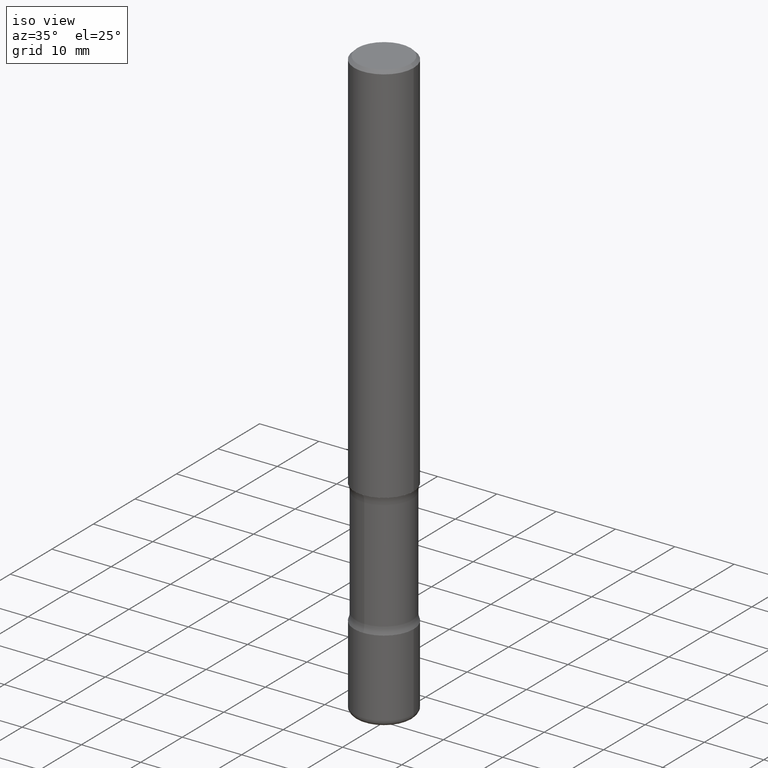
[diagram: clean part render]
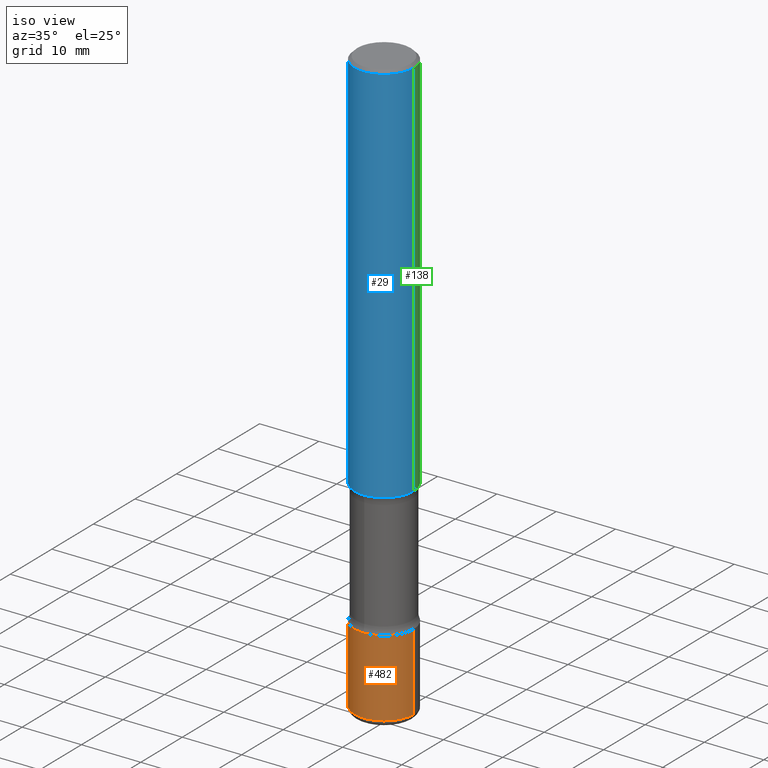
[diagram: same view with three faces highlighted in distinct colors, each labeled with its STEP entity id]
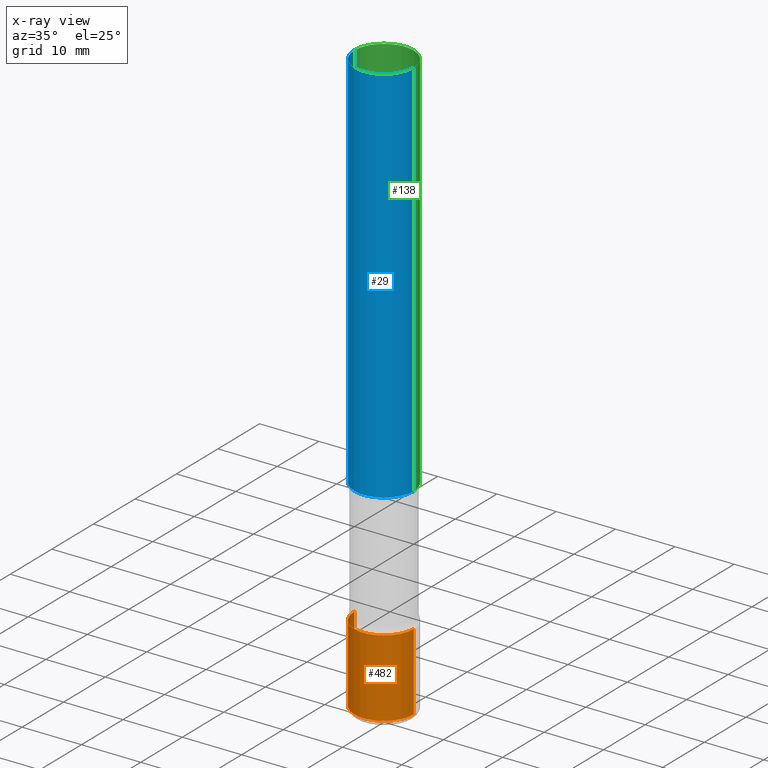
[diagram: x-ray of the same camera — body ghosted, the three highlighted faces saturated]
A machine part, iso view with three faces highlighted in distinct colors.
The next image is the same camera in x-ray (body ghosted, the three faces saturated) — at least one of them is partly hidden behind the body in this view.
Their STEP definitions:

[orange] entity #482 — the highlighted cylindrical surface (edge-blend (fillet) strip) has radius 5 mm, axis along (-0, 0, 1).
#14 = VECTOR ( 'NONE', #139, 39.37007874015748143 ) ;
#25 = CARTESIAN_POINT ( 'NONE',  ( 8.279868283981634472E-29, -1.182145751705512057E-14, -3.385799999999999699 ) ) ;
#32 = LINE ( 'NONE', #343, #14 ) ;
#74 = LINE ( 'NONE', #489, #273 ) ;
#77 = ORIENTED_EDGE ( 'NONE', *, *, #413, .T. ) ;
#78 = DIRECTION ( 'NONE',  ( -2.445468806185136597E-29, 3.491481338843145583E-15, 1.000000000000000000 ) ) ;
#89 = CARTESIAN_POINT ( 'NONE',  ( -0.1968500000000001082, -1.131622421632132460E-14, -3.385799999999999699 ) ) ;
#91 = EDGE_CURVE ( 'NONE', #385, #494, #32, .T. ) ;
#92 = FACE_OUTER_BOUND ( 'NONE', #257, .T. ) ;
#125 = CARTESIAN_POINT ( 'NONE',  ( 9.531459218987189074E-29, -1.360839766627504420E-14, -3.897600000000000176 ) ) ;
#127 = CIRCLE ( 'NONE', #441, 0.1968500000000001082 ) ;
#134 = EDGE_CURVE ( 'NONE', #494, #135, #127, .T. ) ;
#135 = VERTEX_POINT ( 'NONE', #169 ) ;
#139 = DIRECTION ( 'NONE',  ( -2.445468806185136877E-29, 3.491481338843145188E-15, 1.000000000000000000 ) ) ;
#169 = CARTESIAN_POINT ( 'NONE',  ( 0.1968500000000001082, -1.319605372015766376E-14, -3.385799999999999699 ) ) ;
#170 = DIRECTION ( 'NONE',  ( -2.445468806185136597E-29, 3.491481338843145583E-15, 1.000000000000000000 ) ) ;
#174 = CARTESIAN_POINT ( 'NONE',  ( 0.000000000000000000, 0.000000000000000000, 0.000000000000000000 ) ) ;
#247 = DIRECTION ( 'NONE',  ( 1.000000000000000000, -6.982962677686265133E-15, 0.000000000000000000 ) ) ;
#257 = EDGE_LOOP ( 'NONE', ( #374, #492, #77, #352 ) ) ;
#265 = AXIS2_PLACEMENT_3D ( 'NONE', #174, #78, #342 ) ;
#273 = VECTOR ( 'NONE', #414, 39.37007874015748143 ) ;
#293 = VERTEX_POINT ( 'NONE', #450 ) ;
#342 = DIRECTION ( 'NONE',  ( 1.000000000000000000, -6.982962677686266711E-15, 4.876176775795935793E-29 ) ) ;
#343 = CARTESIAN_POINT ( 'NONE',  ( -0.1968500000000001082, 1.398703375343757985E-15, -9.682923725166787881E-30 ) ) ;
#352 = ORIENTED_EDGE ( 'NONE', *, *, #134, .F. ) ;
#367 = CARTESIAN_POINT ( 'NONE',  ( -0.1968500000000000527, -1.220969429093128562E-14, -3.897600000000000176 ) ) ;
#373 = EDGE_CURVE ( 'NONE', #385, #293, #481, .T. ) ;
#374 = ORIENTED_EDGE ( 'NONE', *, *, #91, .F. ) ;
#385 = VERTEX_POINT ( 'NONE', #367 ) ;
#411 = DIRECTION ( 'NONE',  ( -2.445468806185136597E-29, 3.491481338843145583E-15, 1.000000000000000000 ) ) ;
#413 = EDGE_CURVE ( 'NONE', #293, #135, #74, .T. ) ;
#414 = DIRECTION ( 'NONE',  ( -2.445468806185136877E-29, 3.491481338843145188E-15, 1.000000000000000000 ) ) ;
#441 = AXIS2_PLACEMENT_3D ( 'NONE', #25, #170, #247 ) ;
#450 = CARTESIAN_POINT ( 'NONE',  ( 0.1968500000000000527, -1.498299386937758423E-14, -3.897600000000000176 ) ) ;
#481 = CIRCLE ( 'NONE', #559, 0.1968500000000001360 ) ;
#482 = ADVANCED_FACE ( 'NONE', ( #92 ), #505, .T. ) ;
#489 = CARTESIAN_POINT ( 'NONE',  ( 0.1968500000000001082, -1.374596203102542397E-15, 9.598753983154305062E-30 ) ) ;
#492 = ORIENTED_EDGE ( 'NONE', *, *, #373, .T. ) ;
#494 = VERTEX_POINT ( 'NONE', #89 ) ;
#502 = DIRECTION ( 'NONE',  ( 1.000000000000000000, -6.982962677686263555E-15, 0.000000000000000000 ) ) ;
#505 = CYLINDRICAL_SURFACE ( 'NONE', #265, 0.1968500000000001082 ) ;
#559 = AXIS2_PLACEMENT_3D ( 'NONE', #125, #411, #502 ) ;

[blue] entity #29 — the highlighted cylindrical surface (edge-blend (fillet) strip) has radius 5 mm, axis along (-0, 0, 1).
#29 = ADVANCED_FACE ( 'NONE', ( #396 ), #528, .T. ) ;
#95 = AXIS2_PLACEMENT_3D ( 'NONE', #560, #208, #378 ) ;
#97 = CARTESIAN_POINT ( 'NONE',  ( 0.1968499999999998307, -1.420318657638187938E-15, -0.02000000000000006981 ) ) ;
#108 = EDGE_LOOP ( 'NONE', ( #470, #360, #557, #448 ) ) ;
#120 = VERTEX_POINT ( 'NONE', #97 ) ;
#121 = EDGE_CURVE ( 'NONE', #514, #206, #527, .T. ) ;
#124 = DIRECTION ( 'NONE',  ( 1.000000000000000000, -6.982962677686266711E-15, 4.876176775795935793E-29 ) ) ;
#130 = DIRECTION ( 'NONE',  ( -2.445468806185136877E-29, 3.491481338843145188E-15, 1.000000000000000000 ) ) ;
#142 = CARTESIAN_POINT ( 'NONE',  ( -0.1968499999999998307, 1.304766576325677324E-15, -0.02000000000000006981 ) ) ;
#147 = DIRECTION ( 'NONE',  ( -2.445468806185136597E-29, 3.491481338843145583E-15, 1.000000000000000000 ) ) ;
#148 = AXIS2_PLACEMENT_3D ( 'NONE', #526, #147, #487 ) ;
#155 = VECTOR ( 'NONE', #525, 39.37007874015748143 ) ;
#159 = DIRECTION ( 'NONE',  ( -2.445468806185136597E-29, 3.491481338843145583E-15, 1.000000000000000000 ) ) ;
#193 = CARTESIAN_POINT ( 'NONE',  ( -0.1968499999999999694, 1.398703375343756999E-15, -9.682923725166782276E-30 ) ) ;
#203 = VERTEX_POINT ( 'NONE', #142 ) ;
#206 = VERTEX_POINT ( 'NONE', #353 ) ;
#208 = DIRECTION ( 'NONE',  ( -2.445468806185136597E-29, 3.491481338843145583E-15, 1.000000000000000000 ) ) ;
#214 = EDGE_CURVE ( 'NONE', #206, #120, #488, .T. ) ;
#285 = CARTESIAN_POINT ( 'NONE',  ( 0.000000000000000000, 0.000000000000000000, 0.000000000000000000 ) ) ;
#311 = CIRCLE ( 'NONE', #95, 0.1968499999999998307 ) ;
#348 = VECTOR ( 'NONE', #130, 39.37007874015748143 ) ;
#353 = CARTESIAN_POINT ( 'NONE',  ( 0.1968500000000001082, -1.030929694920215344E-14, -2.559000000000000163 ) ) ;
#360 = ORIENTED_EDGE ( 'NONE', *, *, #121, .T. ) ;
#378 = DIRECTION ( 'NONE',  ( 1.000000000000000000, -6.982962677686266711E-15, 0.000000000000000000 ) ) ;
#379 = AXIS2_PLACEMENT_3D ( 'NONE', #285, #159, #124 ) ;
#384 = CARTESIAN_POINT ( 'NONE',  ( -0.1968500000000001082, -3.103561811094476227E-15, -2.559000000000000163 ) ) ;
#389 = EDGE_CURVE ( 'NONE', #514, #203, #539, .T. ) ;
#396 = FACE_OUTER_BOUND ( 'NONE', #108, .T. ) ;
#448 = ORIENTED_EDGE ( 'NONE', *, *, #534, .F. ) ;
#470 = ORIENTED_EDGE ( 'NONE', *, *, #389, .F. ) ;
#487 = DIRECTION ( 'NONE',  ( 1.000000000000000000, -6.982962677686265133E-15, 0.000000000000000000 ) ) ;
#488 = LINE ( 'NONE', #518, #155 ) ;
#514 = VERTEX_POINT ( 'NONE', #384 ) ;
#518 = CARTESIAN_POINT ( 'NONE',  ( 0.1968499999999999694, -1.374596203102541411E-15, 9.598753983154298056E-30 ) ) ;
#525 = DIRECTION ( 'NONE',  ( -2.445468806185136877E-29, 3.491481338843145188E-15, 1.000000000000000000 ) ) ;
#526 = CARTESIAN_POINT ( 'NONE',  ( 6.257954675027765161E-29, -8.934700746099610252E-15, -2.559000000000000163 ) ) ;
#527 = CIRCLE ( 'NONE', #148, 0.1968500000000001082 ) ;
#528 = CYLINDRICAL_SURFACE ( 'NONE', #379, 0.1968499999999999694 ) ;
#534 = EDGE_CURVE ( 'NONE', #203, #120, #311, .T. ) ;
#539 = LINE ( 'NONE', #193, #348 ) ;
#557 = ORIENTED_EDGE ( 'NONE', *, *, #214, .T. ) ;
#560 = CARTESIAN_POINT ( 'NONE',  ( 4.890937612370289799E-31, -6.982962677686315028E-17, -0.02000000000000006981 ) ) ;

[green] entity #138 — the highlighted cylindrical surface (edge-blend (fillet) strip) has radius 5 mm, axis along (-0, 0, 1).
#41 = ORIENTED_EDGE ( 'NONE', *, *, #314, .T. ) ;
#55 = AXIS2_PLACEMENT_3D ( 'NONE', #322, #457, #202 ) ;
#65 = DIRECTION ( 'NONE',  ( -2.445468806185136597E-29, 3.491481338843145583E-15, 1.000000000000000000 ) ) ;
#97 = CARTESIAN_POINT ( 'NONE',  ( 0.1968499999999998307, -1.420318657638187938E-15, -0.02000000000000006981 ) ) ;
#100 = CYLINDRICAL_SURFACE ( 'NONE', #201, 0.1968499999999999694 ) ;
#120 = VERTEX_POINT ( 'NONE', #97 ) ;
#130 = DIRECTION ( 'NONE',  ( -2.445468806185136877E-29, 3.491481338843145188E-15, 1.000000000000000000 ) ) ;
#138 = ADVANCED_FACE ( 'NONE', ( #216 ), #100, .T. ) ;
#142 = CARTESIAN_POINT ( 'NONE',  ( -0.1968499999999998307, 1.304766576325677324E-15, -0.02000000000000006981 ) ) ;
#155 = VECTOR ( 'NONE', #525, 39.37007874015748143 ) ;
#193 = CARTESIAN_POINT ( 'NONE',  ( -0.1968499999999999694, 1.398703375343756999E-15, -9.682923725166782276E-30 ) ) ;
#201 = AXIS2_PLACEMENT_3D ( 'NONE', #460, #419, #224 ) ;
#202 = DIRECTION ( 'NONE',  ( 1.000000000000000000, -6.982962677686265133E-15, 0.000000000000000000 ) ) ;
#203 = VERTEX_POINT ( 'NONE', #142 ) ;
#206 = VERTEX_POINT ( 'NONE', #353 ) ;
#214 = EDGE_CURVE ( 'NONE', #206, #120, #488, .T. ) ;
#216 = FACE_OUTER_BOUND ( 'NONE', #217, .T. ) ;
#217 = EDGE_LOOP ( 'NONE', ( #41, #297, #325, #484 ) ) ;
#224 = DIRECTION ( 'NONE',  ( 1.000000000000000000, -6.982962677686266711E-15, 4.876176775795935793E-29 ) ) ;
#233 = AXIS2_PLACEMENT_3D ( 'NONE', #332, #65, #372 ) ;
#295 = CIRCLE ( 'NONE', #55, 0.1968500000000001082 ) ;
#297 = ORIENTED_EDGE ( 'NONE', *, *, #389, .T. ) ;
#299 = EDGE_CURVE ( 'NONE', #120, #203, #369, .T. ) ;
#314 = EDGE_CURVE ( 'NONE', #206, #514, #295, .T. ) ;
#322 = CARTESIAN_POINT ( 'NONE',  ( 6.257954675027765161E-29, -8.934700746099610252E-15, -2.559000000000000163 ) ) ;
#325 = ORIENTED_EDGE ( 'NONE', *, *, #299, .F. ) ;
#332 = CARTESIAN_POINT ( 'NONE',  ( 4.890937612370289799E-31, -6.982962677686315028E-17, -0.02000000000000006981 ) ) ;
#348 = VECTOR ( 'NONE', #130, 39.37007874015748143 ) ;
#353 = CARTESIAN_POINT ( 'NONE',  ( 0.1968500000000001082, -1.030929694920215344E-14, -2.559000000000000163 ) ) ;
#369 = CIRCLE ( 'NONE', #233, 0.1968499999999998307 ) ;
#372 = DIRECTION ( 'NONE',  ( 1.000000000000000000, -6.982962677686266711E-15, 0.000000000000000000 ) ) ;
#384 = CARTESIAN_POINT ( 'NONE',  ( -0.1968500000000001082, -3.103561811094476227E-15, -2.559000000000000163 ) ) ;
#389 = EDGE_CURVE ( 'NONE', #514, #203, #539, .T. ) ;
#419 = DIRECTION ( 'NONE',  ( -2.445468806185136597E-29, 3.491481338843145583E-15, 1.000000000000000000 ) ) ;
#457 = DIRECTION ( 'NONE',  ( -2.445468806185136597E-29, 3.491481338843145583E-15, 1.000000000000000000 ) ) ;
#460 = CARTESIAN_POINT ( 'NONE',  ( 0.000000000000000000, 0.000000000000000000, 0.000000000000000000 ) ) ;
#484 = ORIENTED_EDGE ( 'NONE', *, *, #214, .F. ) ;
#488 = LINE ( 'NONE', #518, #155 ) ;
#514 = VERTEX_POINT ( 'NONE', #384 ) ;
#518 = CARTESIAN_POINT ( 'NONE',  ( 0.1968499999999999694, -1.374596203102541411E-15, 9.598753983154298056E-30 ) ) ;
#525 = DIRECTION ( 'NONE',  ( -2.445468806185136877E-29, 3.491481338843145188E-15, 1.000000000000000000 ) ) ;
#539 = LINE ( 'NONE', #193, #348 ) ;